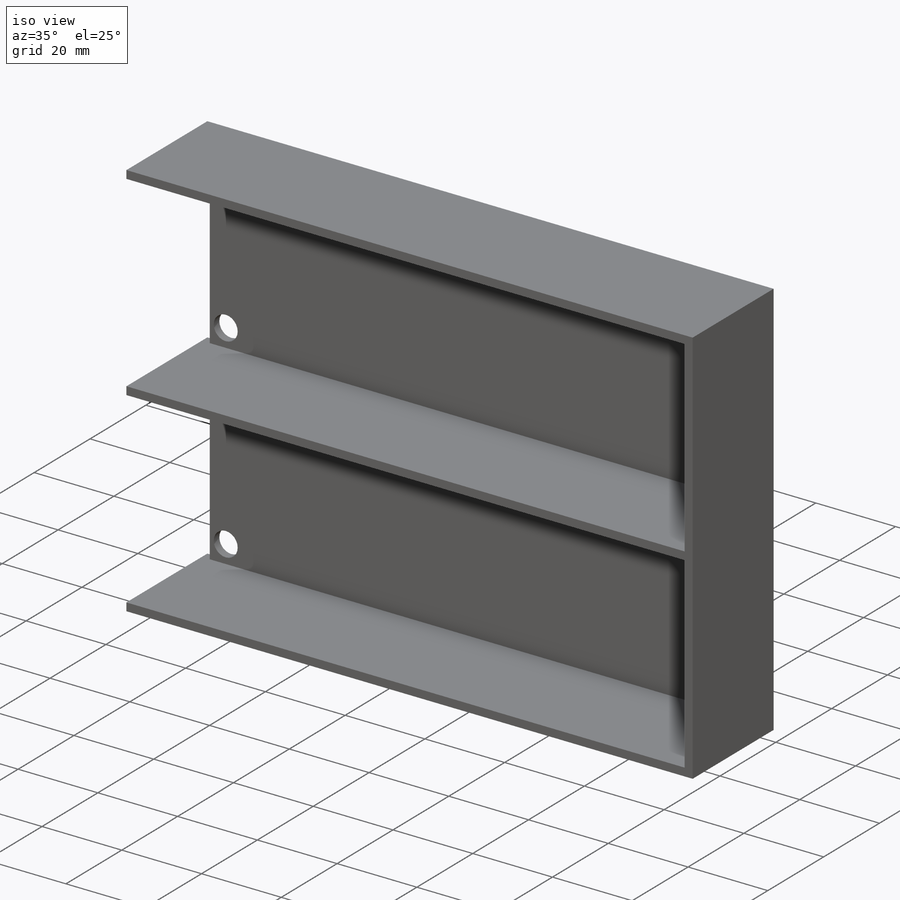
[diagram: iso view]
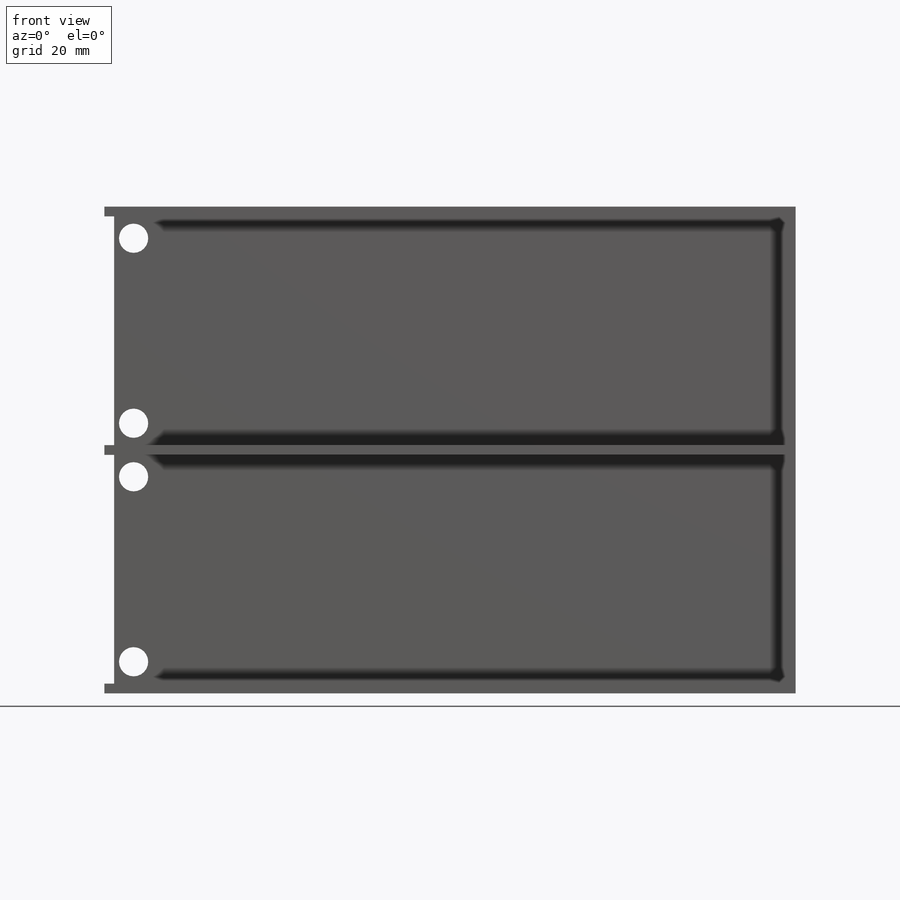
[diagram: front view]
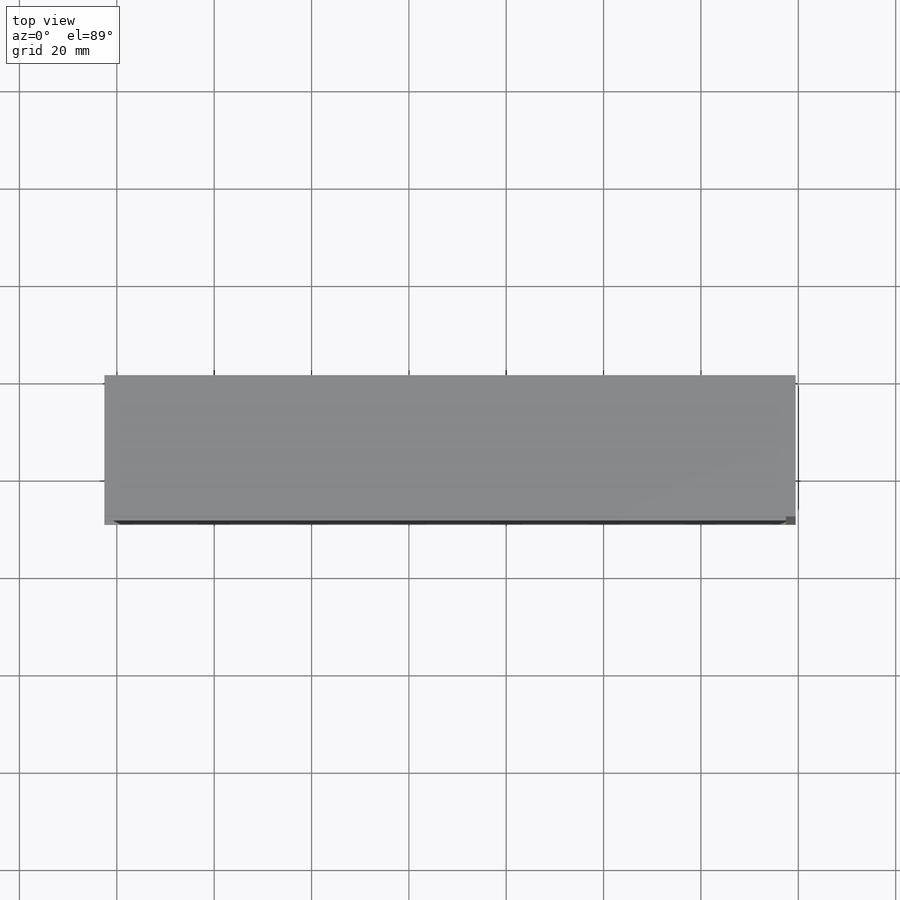
[diagram: top view]
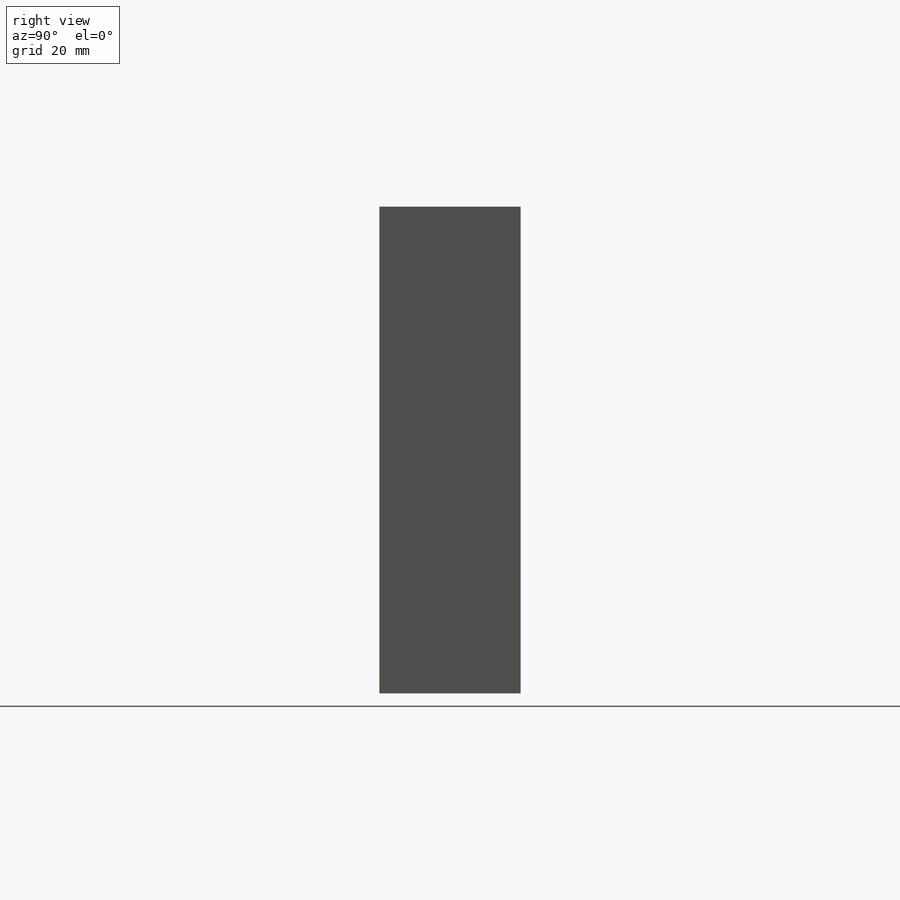
[diagram: right view]
SOLIDWORKS PART (.sldprt)
format: sldprt  version: not decoded by parser v0  size: 205,312 bytes
history: native  units: mm
features: sketch x4, extrude x2, cut_extrude x2, material x1 (+11 scaffold rows collapsed)
feature tree (20):
  scaffold x11  (default folders/planes/origin — collapsed)
  material  "Material <not specified>"
  sketch  "Sketch1"  dims[D1=142.0mm D2=100.0mm]
  extrude  "Boss-Extrude1"  Depth=2mm
  sketch  "Sketch3"  dims[c1.D1=2.0mm c1.D2=2.0mm c1.D3=2.0mm c1.D4=2.0mm c1.D5=2.0mm c2.D4=2.0mm c2.D5=2.0mm c3.D4=~5.122006mm c3.D5=2.0mm c3.D3=2.0mm c3.D1=2.0mm c3.D2=2.0mm c4.D4=2.0mm c4.D1=2.0mm c4.D5=2.0mm]
  extrude  "Boss-Extrude2"  Depth=27mm
  sketch  "Sketch4"  dims[D1=2.0mm]
  cut_extrude  "Cut-Extrude1"  [1 undecoded]
  sketch  "Sketch5"  dims[D2=6.0mm D1=6.0mm D3=6.5mm D4=5.5mm D5=5.5mm D6=6.5mm]
  cut_extrude  "Cut-Extrude4"  [1 undecoded]
decode coverage: 6 of 8 modeling features carry decoded parameters
note: ~ marks probable driven/reference dimensions
note: 2 parameter values undecoded
note: suppression state not decoded; provenance and decode notes live in map.json
